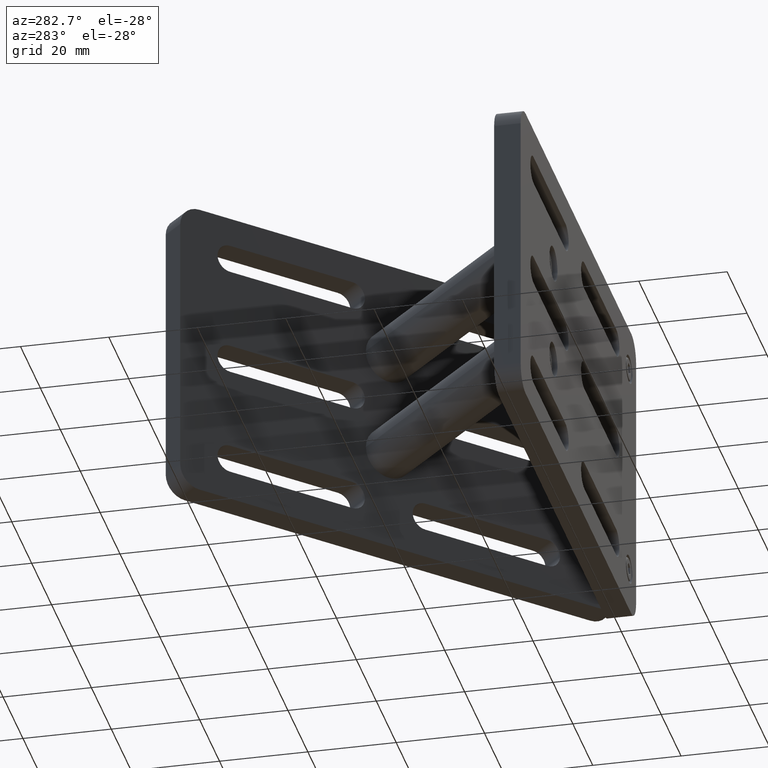
[diagram: clean part render]
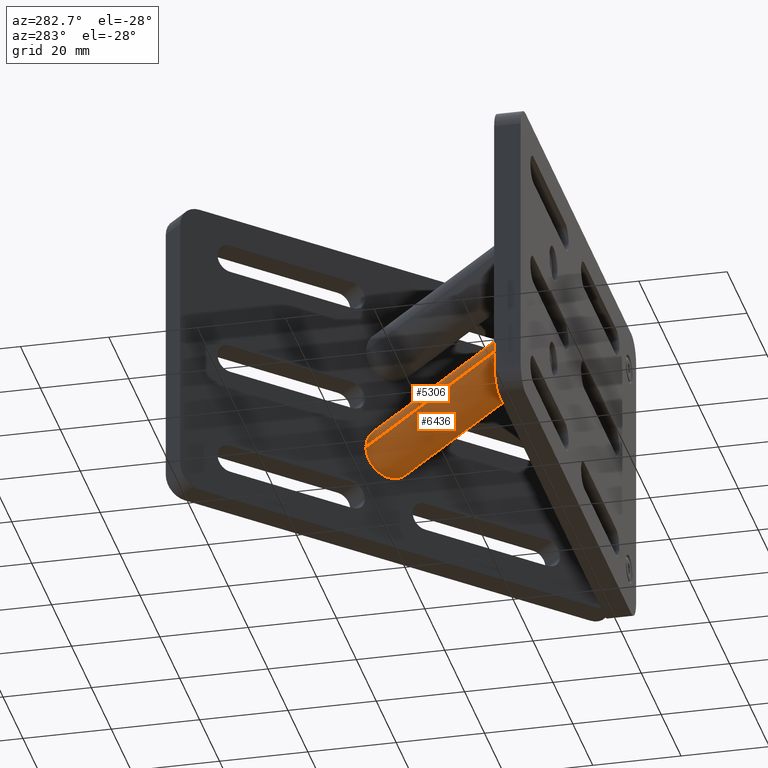
[diagram: same view with one multi-face feature highlighted, each face labeled with its STEP entity id]
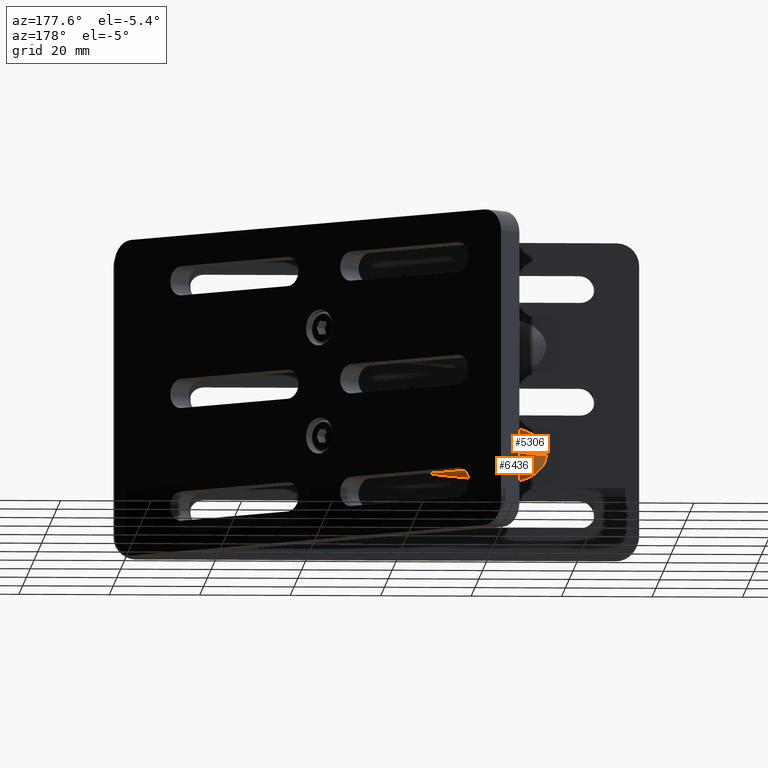
[diagram: same view with one multi-face feature highlighted, each face labeled with its STEP entity id]
A machine part, auxiliary view. The highlighted faces form ONE feature: a constant-radius fillet chain: 2 tangent blend faces with common blend radius 6 mm. The faces share edges in the B-rep.
A second angle (auxiliary view) of the same feature is appended — it is thin or edge-on in the first view.
Their STEP definitions:
[1] entity #6436 (Cylinder):
#20 = EDGE_CURVE ( 'NONE', #1593, #2082, #3235, .T. ) ;
#124 = CARTESIAN_POINT ( 'NONE',  ( 18.01293295702683000, 38.00178566873460500, -12.00000000000011700 ) ) ;
#499 = ORIENTED_EDGE ( 'NONE', *, *, #20, .T. ) ;
#650 = CARTESIAN_POINT ( 'NONE',  ( 19.42714651939989100, 39.41599923110767600, -12.00000000000011500 ) ) ;
#684 = ORIENTED_EDGE ( 'NONE', *, *, #6750, .F. ) ;
#894 = DIRECTION ( 'NONE',  ( 0.7071067811865455700, 0.7071067811865494600, 8.074451954557223900E-016 ) ) ;
#1259 = CARTESIAN_POINT ( 'NONE',  ( -16.98885271170743400, 3.000000000000148300, -12.00000000000015600 ) ) ;
#1289 = AXIS2_PLACEMENT_3D ( 'NONE', #6367, #894, #4197 ) ;
#1327 = EDGE_CURVE ( 'NONE', #2082, #3980, #4875, .T. ) ;
#1499 = CARTESIAN_POINT ( 'NONE',  ( -33.95941546018466500, 3.000000000000224700, -12.00000000000023600 ) ) ;
#1593 = VERTEX_POINT ( 'NONE', #1259 ) ;
#1622 = VERTEX_POINT ( 'NONE', #124 ) ;
#2082 = VERTEX_POINT ( 'NONE', #1499 ) ;
#2091 = VECTOR ( 'NONE', #5678, 1000.000000000000100 ) ;
#2303 = ORIENTED_EDGE ( 'NONE', *, *, #1327, .T. ) ;
#2330 = CYLINDRICAL_SURFACE ( 'NONE', #1289, 6.000000000000072800 ) ;
#2368 = AXIS2_PLACEMENT_3D ( 'NONE', #6950, #3711, #3073 ) ;
#3073 = DIRECTION ( 'NONE',  ( 0.7071067811865435800, -0.7071067811865514600, 5.782411586589287000E-015 ) ) ;
#3235 =( BOUNDED_CURVE ( )  B_SPLINE_CURVE ( 3, ( #6230, #6773, #4590, #3494 ),
 .UNSPECIFIED., .F., .T. ) 
 B_SPLINE_CURVE_WITH_KNOTS ( ( 4, 4 ),
 ( 7.686178894225744800E-015, 3.141592653589785100 ),
 .UNSPECIFIED. ) 
 CURVE ( )  GEOMETRIC_REPRESENTATION_ITEM ( )  RATIONAL_B_SPLINE_CURVE ( ( 1.000000000000000000, 0.3333333333333385900, 0.3333333333333385900, 1.000000000000000000 ) ) 
 REPRESENTATION_ITEM ( '' )  );
#3245 = VECTOR ( 'NONE', #3683, 1000.000000000000100 ) ;
#3437 = FACE_OUTER_BOUND ( 'NONE', #6987, .T. ) ;
#3494 = CARTESIAN_POINT ( 'NONE',  ( -33.95941546018466500, 3.000000000000224700, -12.00000000000023600 ) ) ;
#3683 = DIRECTION ( 'NONE',  ( 0.7071067811865455700, 0.7071067811865493500, 8.074451954557223000E-016 ) ) ;
#3711 = DIRECTION ( 'NONE',  ( 0.7071067811865455700, 0.7071067811865494600, 8.074451954557223900E-016 ) ) ;
#3980 = VERTEX_POINT ( 'NONE', #4769 ) ;
#4197 = DIRECTION ( 'NONE',  ( 0.7071067811865435800, -0.7071067811865514600, 5.782411586589287000E-015 ) ) ;
#4198 = ORIENTED_EDGE ( 'NONE', *, *, #7026, .F. ) ;
#4229 = CIRCLE ( 'NONE', #2368, 6.000000000000072800 ) ;
#4590 = CARTESIAN_POINT ( 'NONE',  ( -33.95941546018450900, 3.000000000000193600, -24.00000000000025900 ) ) ;
#4769 = CARTESIAN_POINT ( 'NONE',  ( 9.527651582788134700, 46.48706704297325800, -12.00000000000018700 ) ) ;
#4875 = LINE ( 'NONE', #6974, #3245 ) ;
#5678 = DIRECTION ( 'NONE',  ( 0.7071067811865455700, 0.7071067811865493500, 8.074451954557223000E-016 ) ) ;
#5866 = LINE ( 'NONE', #650, #2091 ) ;
#6230 = CARTESIAN_POINT ( 'NONE',  ( -16.98885271170743400, 3.000000000000148300, -12.00000000000015600 ) ) ;
#6367 = CARTESIAN_POINT ( 'NONE',  ( 15.18450583228057700, 43.65863991822703800, -12.00000000000014900 ) ) ;
#6436 = ADVANCED_FACE ( 'NONE', ( #3437 ), #2330, .T. ) ;
#6750 = EDGE_CURVE ( 'NONE', #1593, #1622, #5866, .T. ) ;
#6773 = CARTESIAN_POINT ( 'NONE',  ( -16.98885271170767200, 3.000000000000073700, -24.00000000000017400 ) ) ;
#6950 = CARTESIAN_POINT ( 'NONE',  ( 13.77029226990747400, 42.24442635585394600, -12.00000000000011400 ) ) ;
#6974 = CARTESIAN_POINT ( 'NONE',  ( 10.94186514516126300, 47.90128060534639300, -12.00000000000018500 ) ) ;
#6987 = EDGE_LOOP ( 'NONE', ( #499, #2303, #4198, #684 ) ) ;
#7026 = EDGE_CURVE ( 'NONE', #1622, #3980, #4229, .T. ) ;
[2] entity #5306 (Cylinder):
#85 = AXIS2_PLACEMENT_3D ( 'NONE', #2138, #6070, #2185 ) ;
#124 = CARTESIAN_POINT ( 'NONE',  ( 18.01293295702683000, 38.00178566873460500, -12.00000000000011700 ) ) ;
#492 = FACE_OUTER_BOUND ( 'NONE', #2895, .T. ) ;
#601 = EDGE_CURVE ( 'NONE', #3980, #1622, #2221, .T. ) ;
#650 = CARTESIAN_POINT ( 'NONE',  ( 19.42714651939989100, 39.41599923110767600, -12.00000000000011500 ) ) ;
#1259 = CARTESIAN_POINT ( 'NONE',  ( -16.98885271170743400, 3.000000000000148300, -12.00000000000015600 ) ) ;
#1327 = EDGE_CURVE ( 'NONE', #2082, #3980, #4875, .T. ) ;
#1499 = CARTESIAN_POINT ( 'NONE',  ( -33.95941546018466500, 3.000000000000224700, -12.00000000000023600 ) ) ;
#1593 = VERTEX_POINT ( 'NONE', #1259 ) ;
#1622 = VERTEX_POINT ( 'NONE', #124 ) ;
#1952 = DIRECTION ( 'NONE',  ( 0.7071067811865435800, -0.7071067811865514600, 5.782411586589287000E-015 ) ) ;
#2082 = VERTEX_POINT ( 'NONE', #1499 ) ;
#2091 = VECTOR ( 'NONE', #5678, 1000.000000000000100 ) ;
#2092 = ORIENTED_EDGE ( 'NONE', *, *, #601, .F. ) ;
#2138 = CARTESIAN_POINT ( 'NONE',  ( 13.77029226990747400, 42.24442635585394600, -12.00000000000011400 ) ) ;
#2185 = DIRECTION ( 'NONE',  ( 0.7071067811865435800, -0.7071067811865514600, 5.782411586589287000E-015 ) ) ;
#2221 = CIRCLE ( 'NONE', #85, 6.000000000000072800 ) ;
#2700 = ORIENTED_EDGE ( 'NONE', *, *, #1327, .F. ) ;
#2754 = AXIS2_PLACEMENT_3D ( 'NONE', #3283, #4312, #1952 ) ;
#2895 = EDGE_LOOP ( 'NONE', ( #2700, #3804, #3111, #2092 ) ) ;
#3111 = ORIENTED_EDGE ( 'NONE', *, *, #6750, .T. ) ;
#3243 = CARTESIAN_POINT ( 'NONE',  ( -16.98885271170765100, 3.000000000000158100, 1.994931997373327700E-013 ) ) ;
#3245 = VECTOR ( 'NONE', #3683, 1000.000000000000100 ) ;
#3283 = CARTESIAN_POINT ( 'NONE',  ( 15.18450583228057700, 43.65863991822703800, -12.00000000000014900 ) ) ;
#3683 = DIRECTION ( 'NONE',  ( 0.7071067811865455700, 0.7071067811865493500, 8.074451954557223000E-016 ) ) ;
#3804 = ORIENTED_EDGE ( 'NONE', *, *, #7107, .T. ) ;
#3980 = VERTEX_POINT ( 'NONE', #4769 ) ;
#4312 = DIRECTION ( 'NONE',  ( 0.7071067811865455700, 0.7071067811865494600, 8.074451954557223900E-016 ) ) ;
#4753 = CARTESIAN_POINT ( 'NONE',  ( -33.95941546018466500, 3.000000000000224700, -12.00000000000023600 ) ) ;
#4769 = CARTESIAN_POINT ( 'NONE',  ( 9.527651582788134700, 46.48706704297325800, -12.00000000000018700 ) ) ;
#4813 = CYLINDRICAL_SURFACE ( 'NONE', #2754, 6.000000000000072800 ) ;
#4849 = CARTESIAN_POINT ( 'NONE',  ( -16.98885271170743400, 3.000000000000148300, -12.00000000000015600 ) ) ;
#4875 = LINE ( 'NONE', #6974, #3245 ) ;
#5306 = ADVANCED_FACE ( 'NONE', ( #492 ), #4813, .T. ) ;
#5678 = DIRECTION ( 'NONE',  ( 0.7071067811865455700, 0.7071067811865493500, 8.074451954557223000E-016 ) ) ;
#5866 = LINE ( 'NONE', #650, #2091 ) ;
#5893 = CARTESIAN_POINT ( 'NONE',  ( -33.95941546018490000, 3.000000000000277600, 7.112366251504909100E-014 ) ) ;
#6070 = DIRECTION ( 'NONE',  ( 0.7071067811865455700, 0.7071067811865494600, 8.074451954557223900E-016 ) ) ;
#6090 =( BOUNDED_CURVE ( )  B_SPLINE_CURVE ( 3, ( #4753, #5893, #3243, #4849 ),
 .UNSPECIFIED., .F., .T. ) 
 B_SPLINE_CURVE_WITH_KNOTS ( ( 4, 4 ),
 ( 3.141592653589785100, 6.283185307179586200 ),
 .UNSPECIFIED. ) 
 CURVE ( )  GEOMETRIC_REPRESENTATION_ITEM ( )  RATIONAL_B_SPLINE_CURVE ( ( 1.000000000000000000, 0.3333333333333307100, 0.3333333333333307100, 1.000000000000000000 ) ) 
 REPRESENTATION_ITEM ( '' )  );
#6750 = EDGE_CURVE ( 'NONE', #1593, #1622, #5866, .T. ) ;
#6974 = CARTESIAN_POINT ( 'NONE',  ( 10.94186514516126300, 47.90128060534639300, -12.00000000000018500 ) ) ;
#7107 = EDGE_CURVE ( 'NONE', #2082, #1593, #6090, .T. ) ;